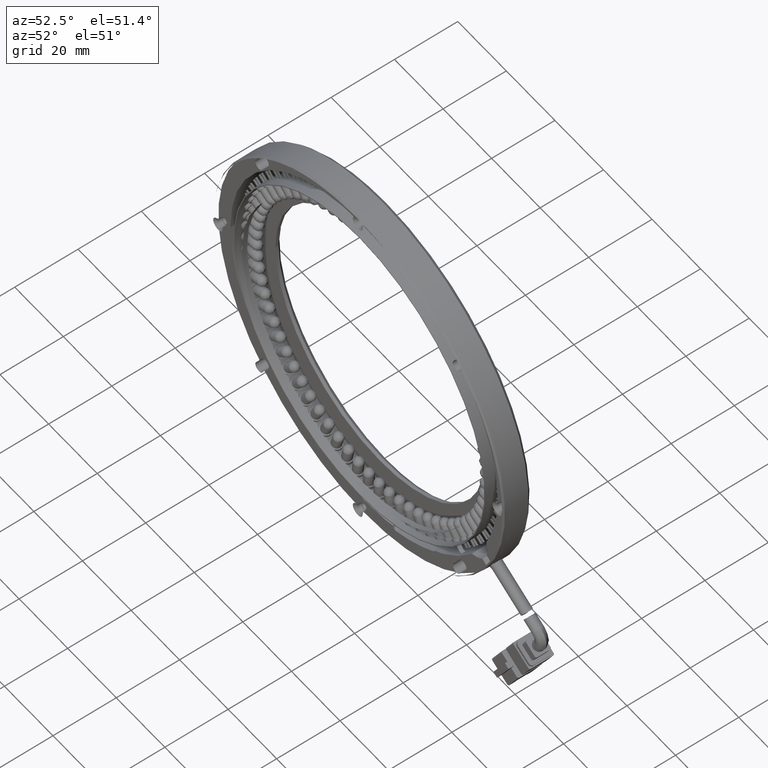
[diagram: clean part render]
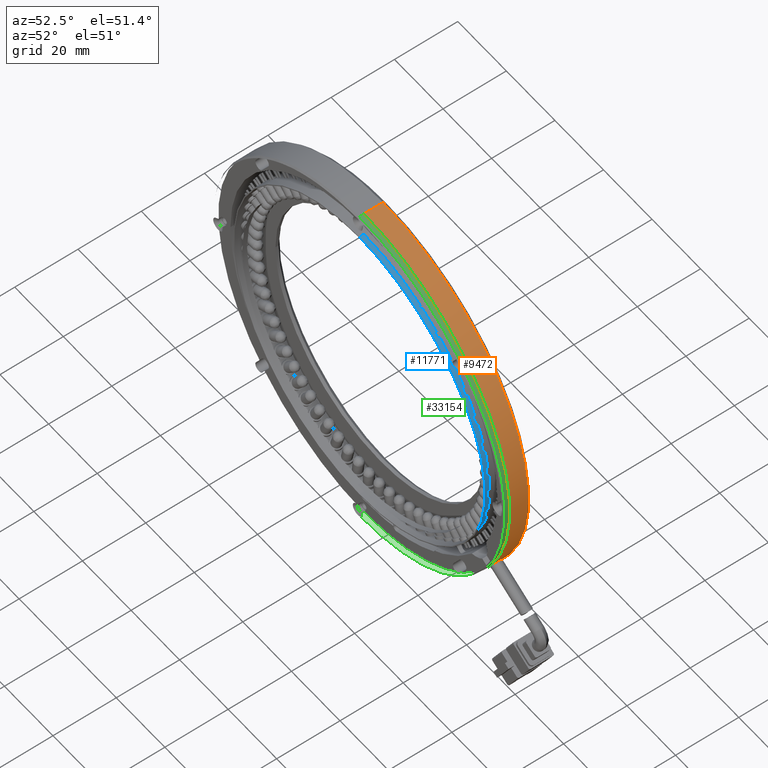
[diagram: same view with three faces highlighted in distinct colors, each labeled with its STEP entity id]
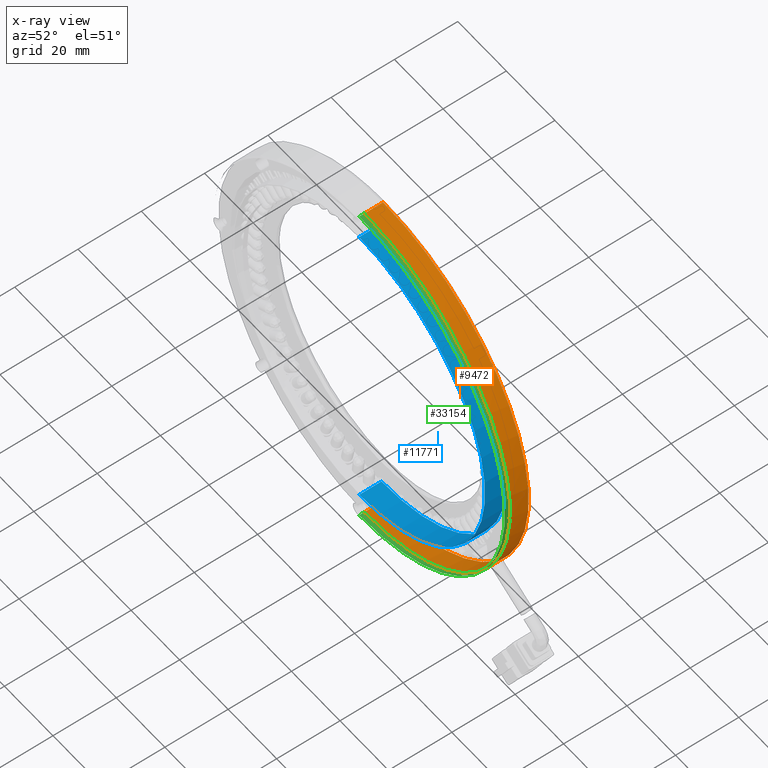
[diagram: x-ray of the same camera — body ghosted, the three highlighted faces saturated]
A machine part, auxiliary view with three faces highlighted in distinct colors.
The next image is the same camera in x-ray (body ghosted, the three faces saturated) — at least one of them is partly hidden behind the body in this view.
Their STEP definitions:

[orange] entity #9472 — the highlighted cylindrical surface (partial cylindrical patch) has radius 60 mm, axis along (0, 1, -0).
#615 = CARTESIAN_POINT ( 'NONE',  ( 108.9616015127010400, 24.33990591241205000, -29.03759658798803400 ) ) ;
#896 = DIRECTION ( 'NONE',  ( -0.0000000000000000000, -1.000000000000000000, 0.0000000000000000000 ) ) ;
#953 = CARTESIAN_POINT ( 'NONE',  ( 108.9223255102946700, 24.40049106353628300, -29.10841468755369400 ) ) ;
#1354 = DIRECTION ( 'NONE',  ( -0.0000000000000000000, -1.000000000000000000, 0.0000000000000000000 ) ) ;
#2026 = CARTESIAN_POINT ( 'NONE',  ( 108.8956600383108100, 24.43678434204864700, -29.15632781080002200 ) ) ;
#2427 = AXIS2_PLACEMENT_3D ( 'NONE', #6284, #16321, #36193 ) ;
#3063 = EDGE_CURVE ( 'NONE', #19425, #49072, #4245, .T. ) ;
#3303 = CARTESIAN_POINT ( 'NONE',  ( 108.7609644062288900, 24.58371660644635900, -29.39706747532097000 ) ) ;
#4176 = CARTESIAN_POINT ( 'NONE',  ( 108.6025386758481800, 24.69477643633649300, -29.67784568662406400 ) ) ;
#4222 = LINE ( 'NONE', #35618, #29034 ) ;
#4245 = B_SPLINE_CURVE_WITH_KNOTS ( 'NONE', 3,
 ( #10218, #10695, #11630, #10058, #10015, #9398, #9264, #9140, #9054, #8548, #8120, #57615, #5474, #6071, #5259, #4985, #4176, #3303, #49678, #2026, #953, #615, #50056, #64332, #64199, #64121, #64070, #63979, #63896, #63847 ),
 .UNSPECIFIED., .F., .F.,
 ( 4, 2, 2, 2, 2, 2, 2, 2, 2, 2, 2, 2, 2, 2, 4 ),
 ( 0.0000000000000000000, 0.1250000000000116600, 0.1875000000000191000, 0.2187500000000229800, 0.2343750000000253700, 0.2500000000000277600, 0.3750000000000227600, 0.5000000000000177600, 0.6250000000000127700, 0.6875000000000102100, 0.7187500000000088800, 0.7343750000000086600, 0.7500000000000084400, 0.8750000000000042200, 1.000000000000000000 ),
 .UNSPECIFIED. ) ;
#4762 = CIRCLE ( 'NONE', #53413, 60.00000000000000000 ) ;
#4985 = CARTESIAN_POINT ( 'NONE',  ( 108.5031715242172700, 24.71889982597300800, -29.85207985124088000 ) ) ;
#5259 = CARTESIAN_POINT ( 'NONE',  ( 108.3323343531352900, 24.71889360071834900, -30.14797695285378200 ) ) ;
#5389 = CYLINDRICAL_SURFACE ( 'NONE', #2427, 60.00000000000000000 ) ;
#5474 = CARTESIAN_POINT ( 'NONE',  ( 108.0125124885094600, 24.54664827108939900, -30.69129563125502400 ) ) ;
#6071 = CARTESIAN_POINT ( 'NONE',  ( 108.2311034291219400, 24.69475282451764300, -30.32118793655982700 ) ) ;
#6284 = CARTESIAN_POINT ( 'NONE',  ( 56.45624510954999000, 21.01889671361172800, 0.0000000000000000000 ) ) ;
#7651 = ORIENTED_EDGE ( 'NONE', *, *, #51984, .F. ) ;
#8120 = CARTESIAN_POINT ( 'NONE',  ( 107.7748428832660300, 24.20205294627882600, -31.08700975351547800 ) ) ;
#8548 = CARTESIAN_POINT ( 'NONE',  ( 107.7606972846711200, 24.17462165868801800, -31.11036769098585400 ) ) ;
#9054 = CARTESIAN_POINT ( 'NONE',  ( 107.7350372713229200, 24.12167807966546100, -31.15270527277187900 ) ) ;
#9140 = CARTESIAN_POINT ( 'NONE',  ( 107.7228125748161200, 24.09486823324868600, -31.17285858922836500 ) ) ;
#9264 = CARTESIAN_POINT ( 'NONE',  ( 107.6879046395145400, 24.01376433703568100, -31.23035833033889800 ) ) ;
#9398 = CARTESIAN_POINT ( 'NONE',  ( 107.6669906044507000, 23.95880466372662800, -31.26473926482467600 ) ) ;
#9472 = ADVANCED_FACE ( 'NONE', ( #36453 ), #5389, .T. ) ;
#10015 = CARTESIAN_POINT ( 'NONE',  ( 107.6107933539878000, 23.79366252378922700, -31.35694148969325600 ) ) ;
#10058 = CARTESIAN_POINT ( 'NONE',  ( 107.5820754639397700, 23.68334906548545900, -31.40378674532980700 ) ) ;
#10218 = CARTESIAN_POINT ( 'NONE',  ( 107.4949962863105200, 23.01888387335434800, -31.54436103309216900 ) ) ;
#10391 = EDGE_LOOP ( 'NONE', ( #24436, #10838, #48625, #44263, #53551, #7651, #57478, #36389 ) ) ;
#10695 = CARTESIAN_POINT ( 'NONE',  ( 107.5003506791527700, 23.17424804708871700, -31.53560558771098600 ) ) ;
#10838 = ORIENTED_EDGE ( 'NONE', *, *, #44351, .T. ) ;
#11630 = CARTESIAN_POINT ( 'NONE',  ( 107.5166247765962700, 23.36610255110186800, -31.51004566347933500 ) ) ;
#14653 = CIRCLE ( 'NONE', #55011, 60.00000000000000000 ) ;
#14773 = VERTEX_POINT ( 'NONE', #30547 ) ;
#16321 = DIRECTION ( 'NONE',  ( 0.0000000000000000000, 1.000000000000000000, -0.0000000000000000000 ) ) ;
#18162 = VERTEX_POINT ( 'NONE', #39158 ) ;
#19156 = CARTESIAN_POINT ( 'NONE',  ( 56.45624510954999000, 21.01889671361172800, 0.0000000000000000000 ) ) ;
#19377 = CARTESIAN_POINT ( 'NONE',  ( 56.45624510954999000, 27.01889671361802000, 0.0000000000000000000 ) ) ;
#19425 = VERTEX_POINT ( 'NONE', #41340 ) ;
#20066 = CARTESIAN_POINT ( 'NONE',  ( 109.2937288828685500, 23.01888405545264500, -28.42887868770792200 ) ) ;
#20275 = EDGE_CURVE ( 'NONE', #19425, #52132, #4222, .T. ) ;
#24125 = DIRECTION ( 'NONE',  ( 0.0000000000000000000, 0.0000000000000000000, 1.000000000000000000 ) ) ;
#24339 = DIRECTION ( 'NONE',  ( 0.0000000000000000000, 0.0000000000000000000, -1.000000000000000000 ) ) ;
#24436 = ORIENTED_EDGE ( 'NONE', *, *, #58728, .F. ) ;
#25058 = CARTESIAN_POINT ( 'NONE',  ( 109.2944054636095800, 22.35223004694671500, -28.42766513483700700 ) ) ;
#28826 = AXIS2_PLACEMENT_3D ( 'NONE', #19377, #53964, #24339 ) ;
#29034 = VECTOR ( 'NONE', #896, 1000.000000000000000 ) ;
#29995 = CARTESIAN_POINT ( 'NONE',  ( 109.2943813872259500, 21.01889671361520200, -28.42765123433125800 ) ) ;
#30547 = CARTESIAN_POINT ( 'NONE',  ( 56.45624510954999000, 21.01889671361172800, 60.00000000000000000 ) ) ;
#30892 = EDGE_CURVE ( 'NONE', #18162, #14773, #14653, .T. ) ;
#31084 = CARTESIAN_POINT ( 'NONE',  ( 56.45624510954999000, 21.01889671361172800, 0.0000000000000000000 ) ) ;
#31304 = CARTESIAN_POINT ( 'NONE',  ( 56.45624510954999000, 27.01889671361802000, -60.00000000000085300 ) ) ;
#31488 = DIRECTION ( 'NONE',  ( 0.0000000000000000000, 1.000000000000000000, -0.0000000000000000000 ) ) ;
#33820 = VECTOR ( 'NONE', #45421, 1000.000000000000000 ) ;
#35166 = B_SPLINE_CURVE_WITH_KNOTS ( 'NONE', 3,
 ( #20066, #25058, #59612, #29995 ),
 .UNSPECIFIED., .F., .F.,
 ( 4, 4 ),
 ( 0.0000000000000000000, 1.000000000000000000 ),
 .UNSPECIFIED. ) ;
#35618 = CARTESIAN_POINT ( 'NONE',  ( 107.4943813872339100, 21.01889671361172800, -31.54534268795575300 ) ) ;
#36065 = DIRECTION ( 'NONE',  ( 0.0000000000000000000, 0.0000000000000000000, 1.000000000000000000 ) ) ;
#36193 = DIRECTION ( 'NONE',  ( 0.0000000000000000000, 0.0000000000000000000, 1.000000000000000000 ) ) ;
#36389 = ORIENTED_EDGE ( 'NONE', *, *, #20275, .T. ) ;
#36453 = FACE_OUTER_BOUND ( 'NONE', #10391, .T. ) ;
#39158 = CARTESIAN_POINT ( 'NONE',  ( 109.2943813872259500, 21.01889671361520200, -28.42765123433125800 ) ) ;
#41340 = CARTESIAN_POINT ( 'NONE',  ( 107.4949962863105200, 23.01888387335434800, -31.54436103309216900 ) ) ;
#41989 = EDGE_CURVE ( 'NONE', #14773, #51242, #57073, .T. ) ;
#44263 = ORIENTED_EDGE ( 'NONE', *, *, #41989, .F. ) ;
#44351 = EDGE_CURVE ( 'NONE', #49987, #54518, #48531, .T. ) ;
#45421 = DIRECTION ( 'NONE',  ( 0.0000000000000000000, 1.000000000000000000, -0.0000000000000000000 ) ) ;
#46282 = CARTESIAN_POINT ( 'NONE',  ( 109.2937288828685500, 23.01888405545264500, -28.42887868770792200 ) ) ;
#46967 = CIRCLE ( 'NONE', #28826, 60.00000000000000000 ) ;
#48531 = LINE ( 'NONE', #60092, #33820 ) ;
#48625 = ORIENTED_EDGE ( 'NONE', *, *, #53065, .F. ) ;
#49072 = VERTEX_POINT ( 'NONE', #46282 ) ;
#49678 = CARTESIAN_POINT ( 'NONE',  ( 108.8151912532197500, 24.53416590338430200, -29.30048672501694200 ) ) ;
#49987 = VERTEX_POINT ( 'NONE', #53482 ) ;
#50056 = CARTESIAN_POINT ( 'NONE',  ( 108.9745723683074500, 24.31868786522907700, -29.01416716586086200 ) ) ;
#51242 = VERTEX_POINT ( 'NONE', #63581 ) ;
#51411 = CARTESIAN_POINT ( 'NONE',  ( 56.45624510954999000, 21.01889671361172800, 60.00000000000000000 ) ) ;
#51656 = CARTESIAN_POINT ( 'NONE',  ( 107.4943813872370300, 21.01889671361172800, -31.54534268795070100 ) ) ;
#51984 = EDGE_CURVE ( 'NONE', #49072, #18162, #35166, .T. ) ;
#52132 = VERTEX_POINT ( 'NONE', #51656 ) ;
#53065 = EDGE_CURVE ( 'NONE', #51242, #54518, #46967, .T. ) ;
#53413 = AXIS2_PLACEMENT_3D ( 'NONE', #31084, #1354, #36065 ) ;
#53482 = CARTESIAN_POINT ( 'NONE',  ( 56.45624510954999700, 21.01889671361172800, -60.00000000000000000 ) ) ;
#53551 = ORIENTED_EDGE ( 'NONE', *, *, #30892, .F. ) ;
#53746 = DIRECTION ( 'NONE',  ( -0.0000000000000000000, -1.000000000000000000, 0.0000000000000000000 ) ) ;
#53964 = DIRECTION ( 'NONE',  ( 0.0000000000000000000, 1.000000000000000000, 0.0000000000000000000 ) ) ;
#54518 = VERTEX_POINT ( 'NONE', #31304 ) ;
#55011 = AXIS2_PLACEMENT_3D ( 'NONE', #19156, #53746, #24125 ) ;
#57073 = LINE ( 'NONE', #51411, #64033 ) ;
#57478 = ORIENTED_EDGE ( 'NONE', *, *, #3063, .F. ) ;
#57615 = CARTESIAN_POINT ( 'NONE',  ( 107.8949260850538100, 24.42144092546307000, -30.88858445563404200 ) ) ;
#58728 = EDGE_CURVE ( 'NONE', #49987, #52132, #4762, .T. ) ;
#59612 = CARTESIAN_POINT ( 'NONE',  ( 109.2943934254215900, 21.68556338027922300, -28.42765818458593300 ) ) ;
#60092 = CARTESIAN_POINT ( 'NONE',  ( 56.45624510954999700, 21.01889671361172800, -60.00000000000000000 ) ) ;
#63581 = CARTESIAN_POINT ( 'NONE',  ( 56.45624510954999700, 27.01889671361802000, 60.00000000000085300 ) ) ;
#63847 = CARTESIAN_POINT ( 'NONE',  ( 109.2937288828685500, 23.01888405545264500, -28.42887868770792200 ) ) ;
#63896 = CARTESIAN_POINT ( 'NONE',  ( 109.2889338473640900, 23.17422294855794000, -28.43768801162763500 ) ) ;
#63979 = CARTESIAN_POINT ( 'NONE',  ( 109.2749392819846400, 23.36606992867571700, -28.46455475174066400 ) ) ;
#64033 = VECTOR ( 'NONE', #31488, 1000.000000000000000 ) ;
#64070 = CARTESIAN_POINT ( 'NONE',  ( 109.1958759956339000, 23.78908320515649400, -28.61097023484240200 ) ) ;
#64121 = CARTESIAN_POINT ( 'NONE',  ( 109.1299295121298500, 24.02104908705103600, -28.73203930713465200 ) ) ;
#64199 = CARTESIAN_POINT ( 'NONE',  ( 109.0121585626487900, 24.25214116653174300, -28.94609995998086300 ) ) ;
#64332 = CARTESIAN_POINT ( 'NONE',  ( 109.0001816388508600, 24.27415653597795500, -28.96781768859114000 ) ) ;

[blue] entity #11771 — the highlighted cylindrical surface (partial cylindrical patch) has radius 51.8 mm, axis along (-0, -1, -0).
#932 = VERTEX_POINT ( 'NONE', #23501 ) ;
#2249 = AXIS2_PLACEMENT_3D ( 'NONE', #14473, #49082, #19466 ) ;
#5391 = EDGE_CURVE ( 'NONE', #44369, #60701, #20745, .T. ) ;
#5772 = CARTESIAN_POINT ( 'NONE',  ( 56.45624510954999700, 26.51889671361344700, 51.79999999999999700 ) ) ;
#6639 = EDGE_CURVE ( 'NONE', #49005, #932, #41816, .T. ) ;
#7176 = LINE ( 'NONE', #16195, #58235 ) ;
#7502 = ORIENTED_EDGE ( 'NONE', *, *, #5391, .F. ) ;
#8997 = ORIENTED_EDGE ( 'NONE', *, *, #56426, .T. ) ;
#9106 = EDGE_CURVE ( 'NONE', #60701, #932, #36829, .T. ) ;
#9475 = ORIENTED_EDGE ( 'NONE', *, *, #6639, .T. ) ;
#11771 = ADVANCED_FACE ( 'NONE', ( #59899 ), #28939, .T. ) ;
#14473 = CARTESIAN_POINT ( 'NONE',  ( 56.45624510954999000, 19.51889671361662300, 0.0000000000000000000 ) ) ;
#16195 = CARTESIAN_POINT ( 'NONE',  ( 56.45624510954999700, 26.51889671361344700, 51.79999999999999700 ) ) ;
#17238 = CARTESIAN_POINT ( 'NONE',  ( 56.45624510954999000, 26.51889671361344700, 0.0000000000000000000 ) ) ;
#19466 = DIRECTION ( 'NONE',  ( 0.0000000000000000000, 0.0000000000000000000, -1.000000000000000000 ) ) ;
#20745 = CIRCLE ( 'NONE', #57693, 51.79999999999999700 ) ;
#22354 = CARTESIAN_POINT ( 'NONE',  ( 56.45624510954999000, 26.51889671361344700, 0.0000000000000000000 ) ) ;
#23501 = CARTESIAN_POINT ( 'NONE',  ( 56.45624510954999000, 19.51889671361662300, -51.79999999999999700 ) ) ;
#25734 = CARTESIAN_POINT ( 'NONE',  ( 56.45624510954999700, 19.51889671361662300, 51.79999999999999700 ) ) ;
#27291 = DIRECTION ( 'NONE',  ( 0.0000000000000000000, 0.0000000000000000000, -1.000000000000000000 ) ) ;
#27352 = DIRECTION ( 'NONE',  ( -0.0000000000000000000, -1.000000000000000000, -0.0000000000000000000 ) ) ;
#28939 = CYLINDRICAL_SURFACE ( 'NONE', #56967, 51.79999999999999700 ) ;
#36829 = LINE ( 'NONE', #56946, #63095 ) ;
#41816 = CIRCLE ( 'NONE', #2249, 51.79999999999999700 ) ;
#42985 = ORIENTED_EDGE ( 'NONE', *, *, #9106, .F. ) ;
#43562 = CARTESIAN_POINT ( 'NONE',  ( 56.45624510954999000, 26.51889671361344700, -51.79999999999999700 ) ) ;
#44369 = VERTEX_POINT ( 'NONE', #5772 ) ;
#46455 = DIRECTION ( 'NONE',  ( -0.0000000000000000000, -1.000000000000000000, -0.0000000000000000000 ) ) ;
#49005 = VERTEX_POINT ( 'NONE', #25734 ) ;
#49082 = DIRECTION ( 'NONE',  ( 0.0000000000000000000, 1.000000000000000000, 0.0000000000000000000 ) ) ;
#51872 = DIRECTION ( 'NONE',  ( 0.0000000000000000000, 0.0000000000000000000, -1.000000000000000000 ) ) ;
#56426 = EDGE_CURVE ( 'NONE', #44369, #49005, #7176, .T. ) ;
#56906 = DIRECTION ( 'NONE',  ( 0.0000000000000000000, 1.000000000000000000, 0.0000000000000000000 ) ) ;
#56946 = CARTESIAN_POINT ( 'NONE',  ( 56.45624510954999000, 26.51889671361344700, -51.79999999999999700 ) ) ;
#56967 = AXIS2_PLACEMENT_3D ( 'NONE', #17238, #46455, #51872 ) ;
#57693 = AXIS2_PLACEMENT_3D ( 'NONE', #22354, #56906, #27291 ) ;
#58235 = VECTOR ( 'NONE', #60695, 1000.000000000000000 ) ;
#58911 = EDGE_LOOP ( 'NONE', ( #7502, #8997, #9475, #42985 ) ) ;
#59899 = FACE_OUTER_BOUND ( 'NONE', #58911, .T. ) ;
#60695 = DIRECTION ( 'NONE',  ( -0.0000000000000000000, -1.000000000000000000, -0.0000000000000000000 ) ) ;
#60701 = VERTEX_POINT ( 'NONE', #43562 ) ;
#63095 = VECTOR ( 'NONE', #27352, 1000.000000000000000 ) ;

[green] entity #33154 — the highlighted cylindrical surface (partial cylindrical patch) has radius 60 mm, axis along (0, -1, 0).
#683 = EDGE_LOOP ( 'NONE', ( #39966, #32235, #60921, #36967 ) ) ;
#1304 = VERTEX_POINT ( 'NONE', #41125 ) ;
#1843 = CARTESIAN_POINT ( 'NONE',  ( 56.45624510954999700, 21.01889671361719500, 60.00000000000000000 ) ) ;
#3088 = DIRECTION ( 'NONE',  ( 0.0000000000000000000, -1.000000000000000000, 0.0000000000000000000 ) ) ;
#9377 = CYLINDRICAL_SURFACE ( 'NONE', #36205, 60.00000000000000000 ) ;
#11104 = DIRECTION ( 'NONE',  ( 0.0000000000000000000, 1.000000000000000000, 0.0000000000000000000 ) ) ;
#14919 = CARTESIAN_POINT ( 'NONE',  ( 56.45624510954999000, 21.01889671361719500, 0.0000000000000000000 ) ) ;
#16117 = AXIS2_PLACEMENT_3D ( 'NONE', #40797, #11104, #45739 ) ;
#16937 = CIRCLE ( 'NONE', #16117, 60.00000000000098100 ) ;
#17293 = CIRCLE ( 'NONE', #45440, 60.00000000000000000 ) ;
#19895 = DIRECTION ( 'NONE',  ( 0.0000000000000000000, 0.0000000000000000000, -1.000000000000000000 ) ) ;
#20988 = LINE ( 'NONE', #22871, #45745 ) ;
#21246 = CARTESIAN_POINT ( 'NONE',  ( 56.45624510954999700, 21.01889671361719500, 60.00000000000000000 ) ) ;
#22871 = CARTESIAN_POINT ( 'NONE',  ( 56.45624510954999000, 21.01889671361719500, -60.00000000000000000 ) ) ;
#24664 = EDGE_CURVE ( 'NONE', #58176, #52588, #17293, .T. ) ;
#25630 = CARTESIAN_POINT ( 'NONE',  ( 56.45624510954999000, 21.01889671361719500, -60.00000000000000000 ) ) ;
#26042 = CARTESIAN_POINT ( 'NONE',  ( 56.45624510954999000, 21.01889671361719500, 0.0000000000000000000 ) ) ;
#26273 = DIRECTION ( 'NONE',  ( 0.0000000000000000000, 0.0000000000000000000, -1.000000000000000000 ) ) ;
#27209 = FACE_OUTER_BOUND ( 'NONE', #683, .T. ) ;
#30998 = DIRECTION ( 'NONE',  ( 0.0000000000000000000, -1.000000000000000000, 0.0000000000000000000 ) ) ;
#31211 = EDGE_CURVE ( 'NONE', #44774, #1304, #16937, .T. ) ;
#32235 = ORIENTED_EDGE ( 'NONE', *, *, #50129, .T. ) ;
#33154 = ADVANCED_FACE ( 'NONE', ( #27209 ), #9377, .T. ) ;
#36205 = AXIS2_PLACEMENT_3D ( 'NONE', #26042, #30998, #26273 ) ;
#36967 = ORIENTED_EDGE ( 'NONE', *, *, #49255, .F. ) ;
#39966 = ORIENTED_EDGE ( 'NONE', *, *, #24664, .F. ) ;
#40797 = CARTESIAN_POINT ( 'NONE',  ( 56.45624510954999000, 19.51889671361281500, 0.0000000000000000000 ) ) ;
#41125 = CARTESIAN_POINT ( 'NONE',  ( 56.45624510954999000, 19.51889671361281500, -60.00000000000098100 ) ) ;
#44774 = VERTEX_POINT ( 'NONE', #58059 ) ;
#45440 = AXIS2_PLACEMENT_3D ( 'NONE', #14919, #49530, #19895 ) ;
#45739 = DIRECTION ( 'NONE',  ( 0.0000000000000000000, 0.0000000000000000000, 1.000000000000000000 ) ) ;
#45745 = VECTOR ( 'NONE', #3088, 1000.000000000000000 ) ;
#45911 = DIRECTION ( 'NONE',  ( 0.0000000000000000000, -1.000000000000000000, 0.0000000000000000000 ) ) ;
#49255 = EDGE_CURVE ( 'NONE', #52588, #1304, #20988, .T. ) ;
#49530 = DIRECTION ( 'NONE',  ( -0.0000000000000000000, 1.000000000000000000, -0.0000000000000000000 ) ) ;
#50129 = EDGE_CURVE ( 'NONE', #58176, #44774, #60395, .T. ) ;
#52588 = VERTEX_POINT ( 'NONE', #25630 ) ;
#58059 = CARTESIAN_POINT ( 'NONE',  ( 56.45624510954999700, 19.51889671361281500, 60.00000000000098100 ) ) ;
#58176 = VERTEX_POINT ( 'NONE', #1843 ) ;
#58833 = VECTOR ( 'NONE', #45911, 1000.000000000000000 ) ;
#60395 = LINE ( 'NONE', #21246, #58833 ) ;
#60921 = ORIENTED_EDGE ( 'NONE', *, *, #31211, .T. ) ;